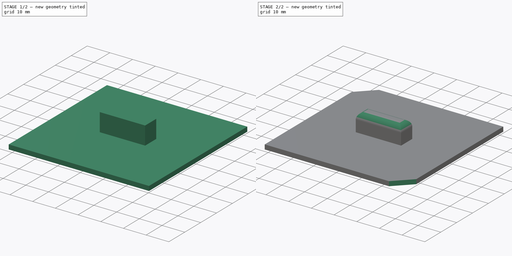
[diagram: build sequence overview — one tinted view per stage of 2, left to right]
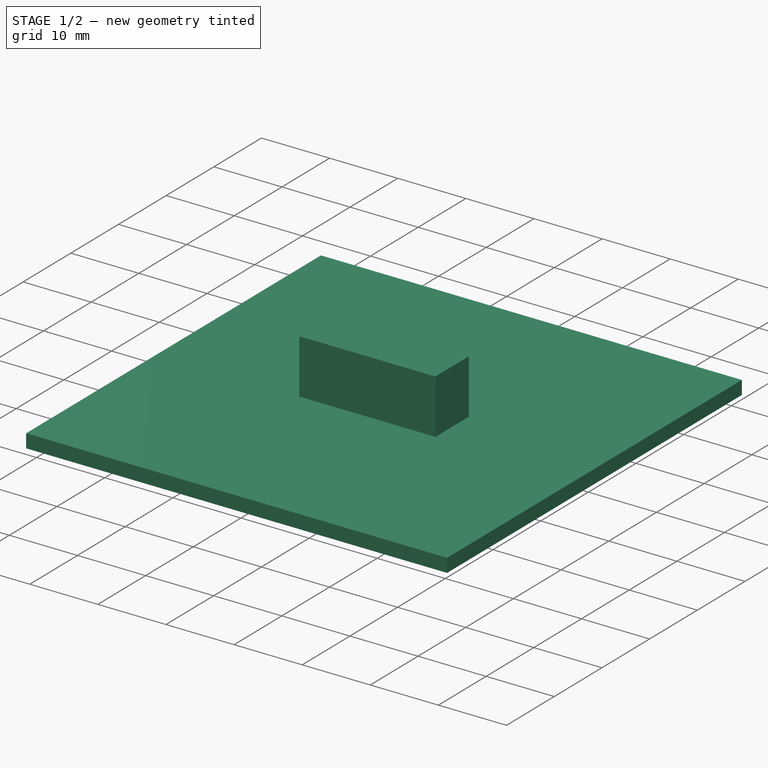
[diagram: stage 1 of 2 — iso view after this stage's code; geometry added in this stage tinted green]
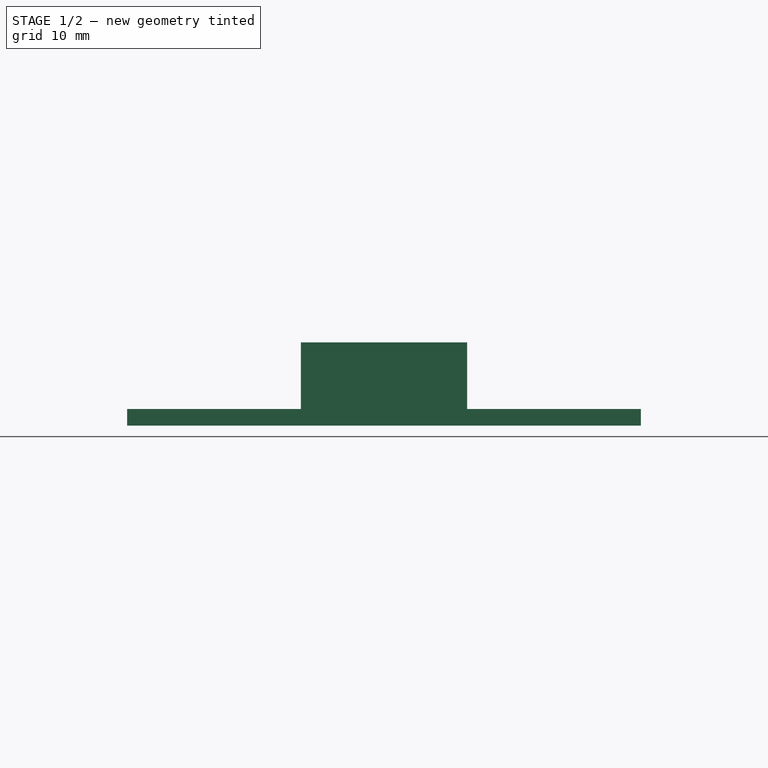
[diagram: stage 1 of 2 — front view after this stage's code; geometry added in this stage tinted green]
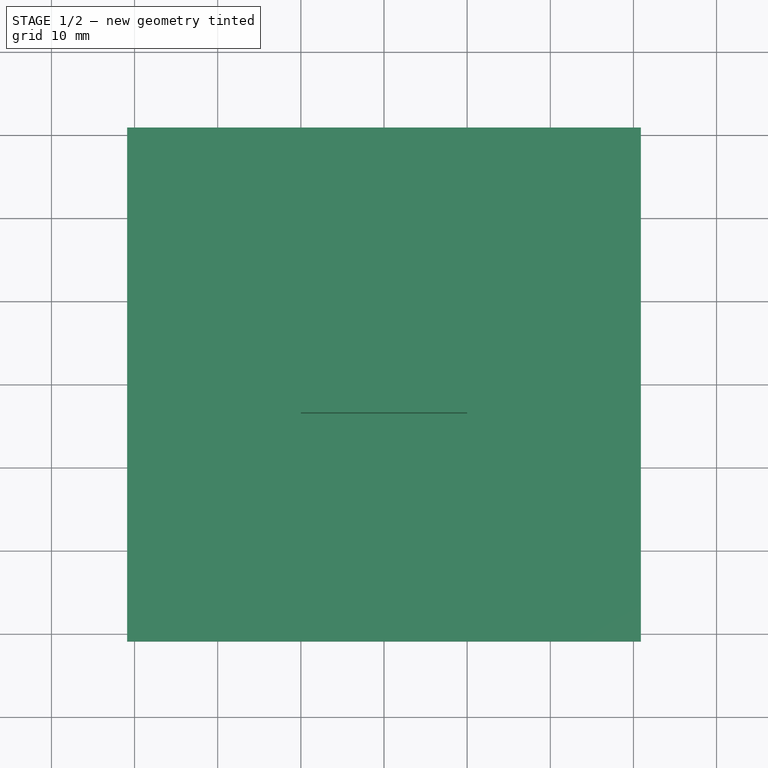
[diagram: stage 1 of 2 — top view after this stage's code; geometry added in this stage tinted green]
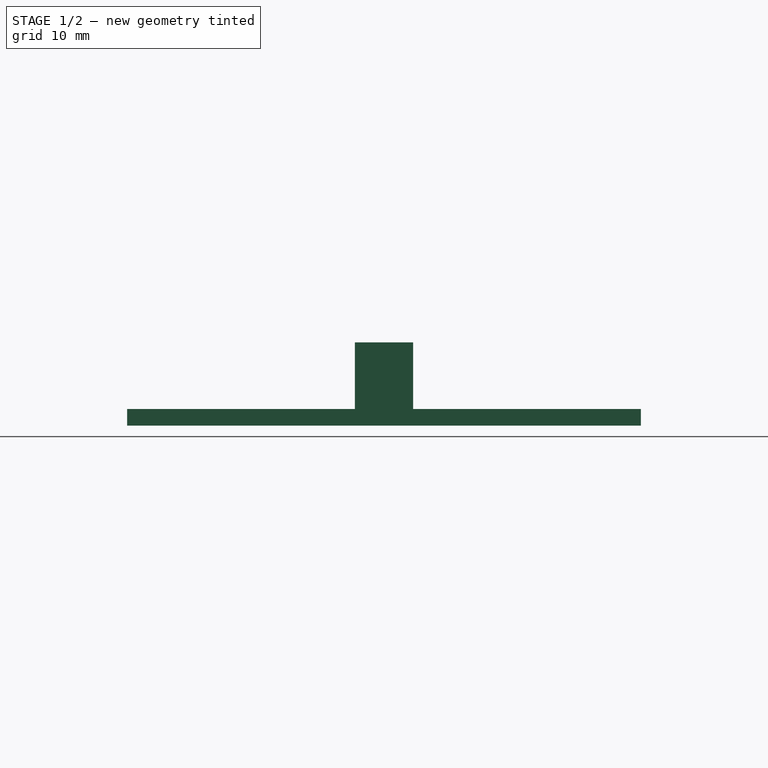
[diagram: stage 1 of 2 — right view after this stage's code; geometry added in this stage tinted green]
FCSTD DOCUMENT  (FreeCAD 0.18R4 (GitTag))
Label: Formicarium_Lid_S
License: All rights reserved
LicenseURL: http://en.wikipedia.org/wiki/All_rights_reserved
objects: Sketcher::SketchObject×3, PartDesign::Pad×2, PartDesign::Fillet×1, PartDesign::Pocket×1, PartDesign::Body×1
note: 11 computed .brp shape members not serialized (recipe doc carries the construction recipe); baked Part::Feature solids carry a one-line shape summary decoded from their .brp

FEATURE [Sketcher::SketchObject] Sketch
  MapMode = 5
  Support = -> [XY_Plane]
  sketch-geometry (4):
    g0: LineSegment StartX=-30.9 StartY=30.9 StartZ=0 EndX=30.9 EndY=30.9 EndZ=0
    g1: LineSegment StartX=30.9 StartY=30.9 StartZ=0 EndX=30.9 EndY=-30.9 EndZ=0
    g2: LineSegment StartX=30.9 StartY=-30.9 StartZ=0 EndX=-30.9 EndY=-30.9 EndZ=0
    g3: LineSegment StartX=-30.9 StartY=-30.9 StartZ=0 EndX=-30.9 EndY=30.9 EndZ=0
  constraints (10):
    c: Coincident(g0,g1)
    c: Coincident(g1,g2)
    c: Coincident(g2,g3)
    c: Coincident(g3,g0)
    c: Horizontal(g2)
    c: Vertical(g3)
    c: DistanceX(g0,g0) = 61.8
    c: DistanceY(g3,g3) = 61.8
    c: Symmetric(g0,g0,g-2)
    c: Symmetric(g1,g0,g-1)
FEATURE [PartDesign::Pad] Pad
  Length = 2
  Length2 = 100
  Profile = -> Sketch
  Type = 0
FEATURE [Sketcher::SketchObject] Sketch001
  MapMode = 5
  Placement = pos=(0,0,2) rot=(0,0,1;0rad)
  Support = -> [Pad]
  sketch-geometry (4):
    g0: LineSegment StartX=-10 StartY=3.5 StartZ=0 EndX=10 EndY=3.5 EndZ=0
    g1: LineSegment StartX=10 StartY=3.5 StartZ=0 EndX=10 EndY=-3.5 EndZ=0
    g2: LineSegment StartX=10 StartY=-3.5 StartZ=0 EndX=-10 EndY=-3.5 EndZ=0
    g3: LineSegment StartX=-10 StartY=-3.5 StartZ=0 EndX=-10 EndY=3.5 EndZ=0
  constraints (10):
    c: Coincident(g0,g1)
    c: Coincident(g1,g2)
    c: Coincident(g2,g3)
    c: Coincident(g3,g0)
    c: Horizontal(g2)
    c: Vertical(g3)
    c: DistanceX(g0,g0) = 20
    c: DistanceY(g1,g1) = 7
    c: Symmetric(g0,g0,g-2)
    c: Symmetric(g1,g0,g-1)
FEATURE [PartDesign::Pad] Pad001
  BaseFeature = -> Pad
  Length = 8
  Length2 = 100
  Profile = -> Sketch001
  Type = 0
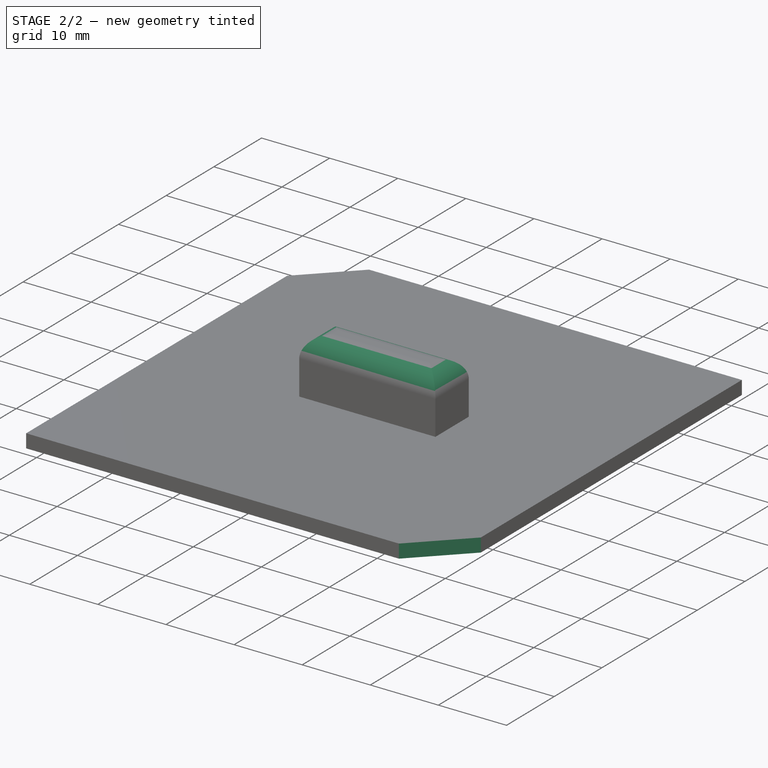
[diagram: stage 2 of 2 — iso view after this stage's code; geometry added in this stage tinted green]
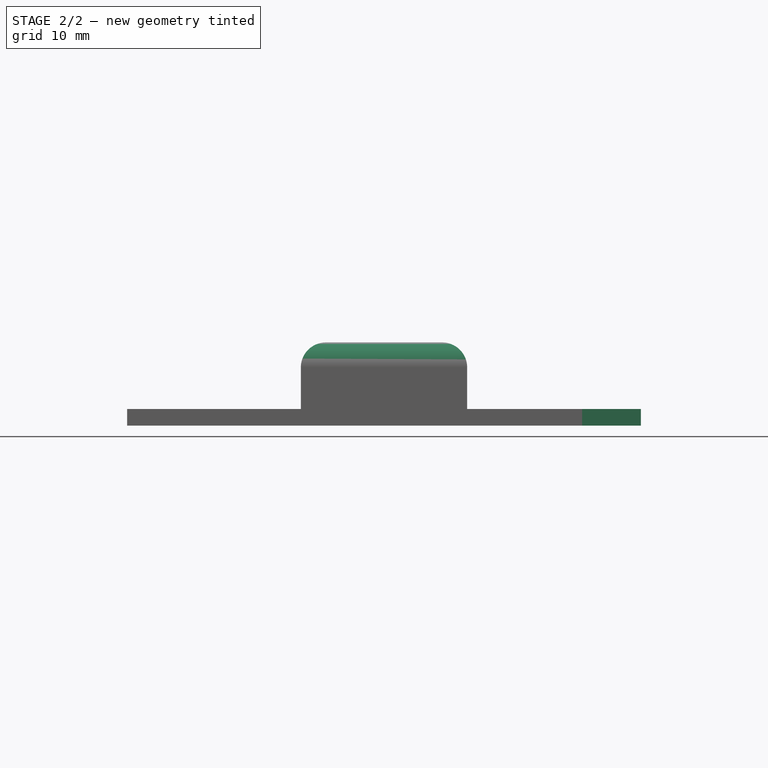
[diagram: stage 2 of 2 — front view after this stage's code; geometry added in this stage tinted green]
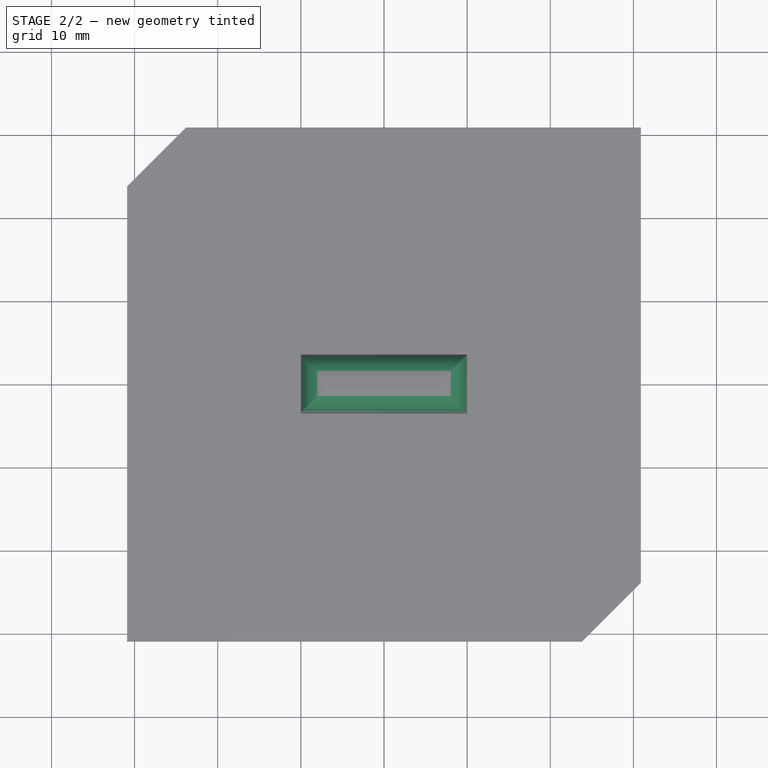
[diagram: stage 2 of 2 — top view after this stage's code; geometry added in this stage tinted green]
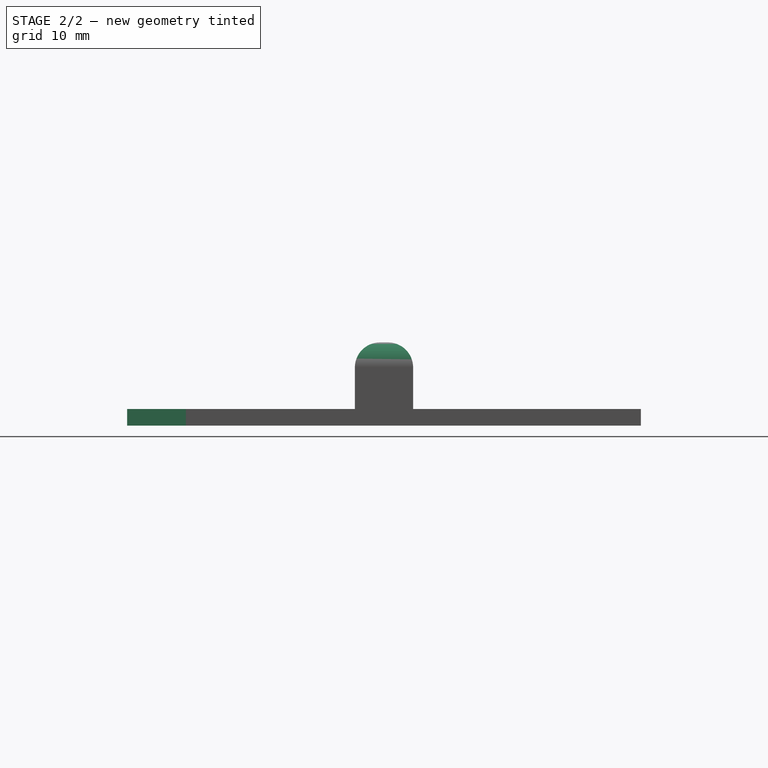
[diagram: stage 2 of 2 — right view after this stage's code; geometry added in this stage tinted green]
FEATURE [PartDesign::Fillet] Fillet
  Base = -> Pad001 [Edge23,Edge21,Edge19,Edge24]
  BaseFeature = -> Pad001
  Radius = 3
FEATURE [Sketcher::SketchObject] Sketch002
  MapMode = 5
  Placement = pos=(0,0,2) rot=(0,0,1;0rad)
  Support = -> [Fillet]
  sketch-geometry (6):
    g0: LineSegment StartX=-30.9 StartY=30.9 StartZ=0 EndX=-30.9 EndY=23.8289 EndZ=0
    g1: LineSegment StartX=-30.9 StartY=23.8289 StartZ=0 EndX=-23.8289 EndY=30.9 EndZ=0
    g2: LineSegment StartX=-23.8289 StartY=30.9 StartZ=0 EndX=-30.9 EndY=30.9 EndZ=0
    g3: LineSegment StartX=23.8289 StartY=-30.9 StartZ=0 EndX=30.9 EndY=-23.8289 EndZ=0
    g4: LineSegment StartX=30.9 StartY=-23.8289 StartZ=0 EndX=30.9 EndY=-30.9 EndZ=0
    g5: LineSegment StartX=30.9 StartY=-30.9 StartZ=0 EndX=23.8289 EndY=-30.9 EndZ=0
  constraints (18):
    c: Vertical(g0)
    c: Coincident(g0,g1)
    c: Coincident(g1,g2)
    c: Coincident(g2,g0)
    c: Coincident(g3,g4)
    c: Vertical(g4)
    c: Coincident(g4,g5)
    c: Coincident(g5,g3)
    c: Perpendicular(g4,g5)
    c: Perpendicular(g2,g0)
    c: Equal(g1,g3)
    c: Distance(g1) = 10
    c: Equal(g0,g2)
    c: Equal(g5,g4)
    c: DistanceX(g0) = -30.9
    c: DistanceY(g0) = 30.9
    c: DistanceY(g4) = -30.9
    c: DistanceX(g4) = 30.9
FEATURE [PartDesign::Pocket] Pocket
  BaseFeature = -> Fillet
  Length = 5
  Length2 = 100
  Profile = -> Sketch002
  Type = 1
FEATURE [PartDesign::Body] Body
  Group = -> [Sketch,Pad,Sketch001,Pad001,Fillet,Sketch002,Pocket]
  Origin = -> Origin
  Tip = -> Pocket
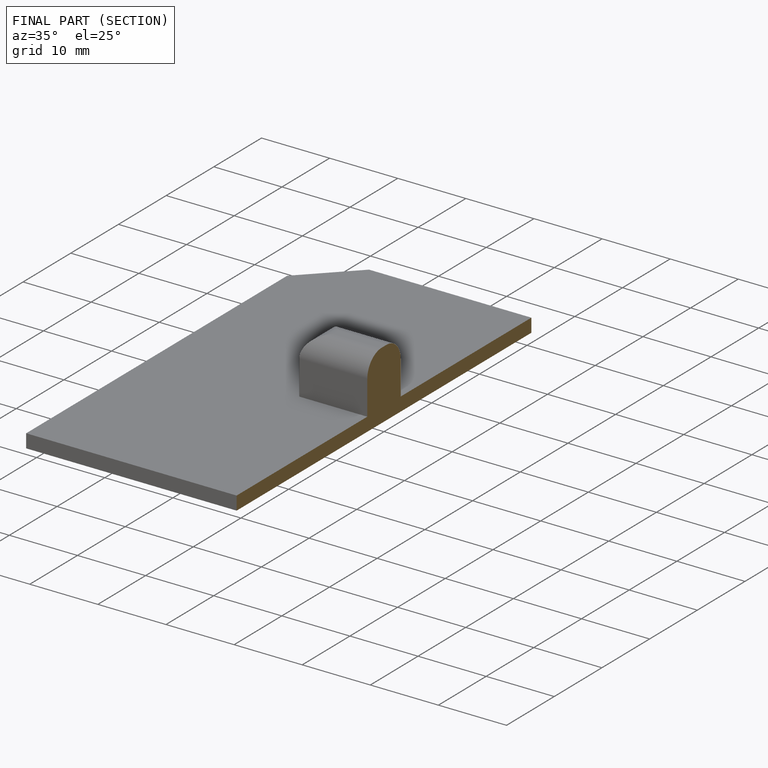
[diagram: finished part — half-section view (interior)]
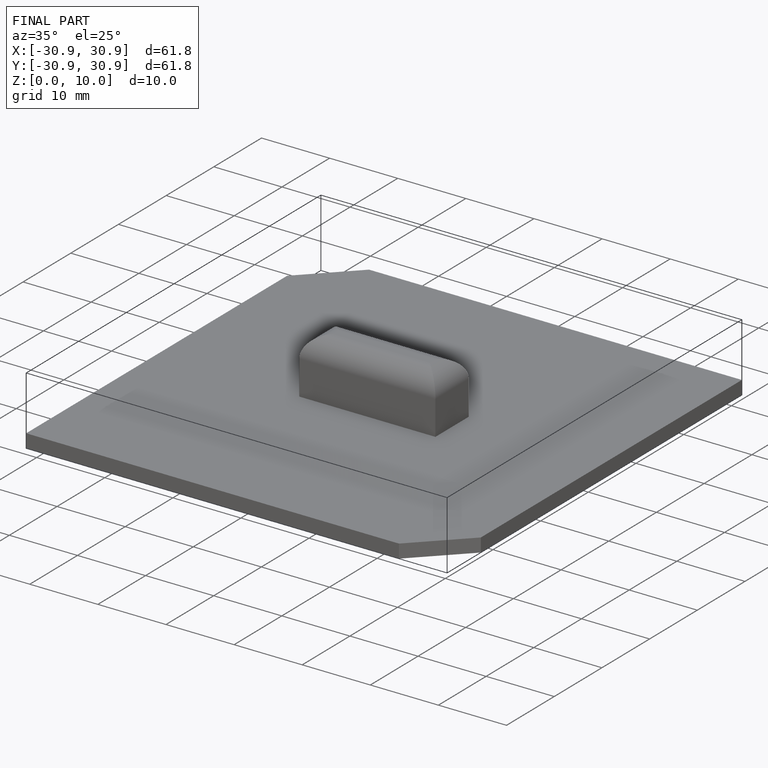
[diagram: finished part — iso view with bounding-box wireframe]
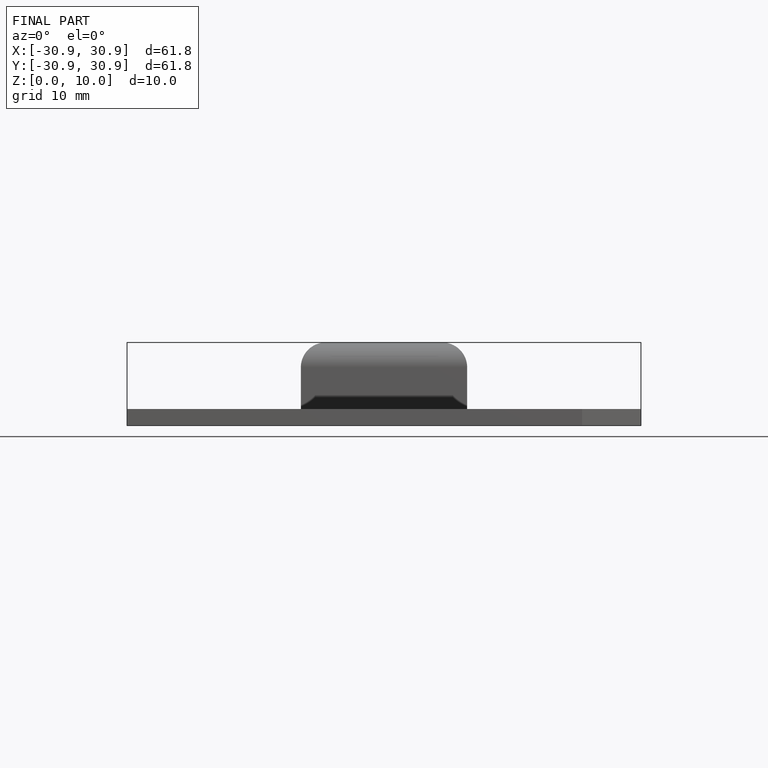
[diagram: finished part — front view with bounding-box wireframe]
